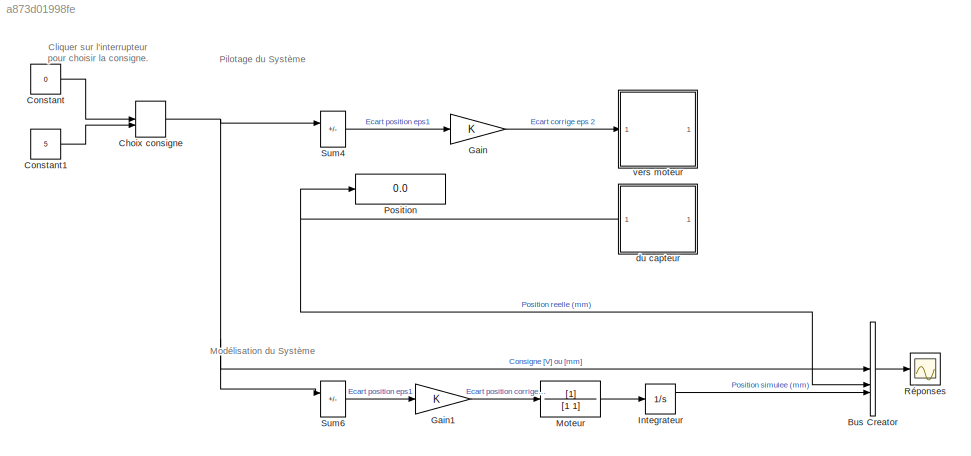
MODEL slx_a873d01998fe
KIND model
CONFIG AbsTol = auto
CONFIG EnableMultiTasking = on
CONFIG FixedStep = dt
CONFIG MaxStep = auto
CONFIG MinStep = auto
CONFIG RelTol = 1e-3
CONFIG SampleTimeConstraint = Unconstrained
CONFIG SolverName = ode5
CONFIG StartTime = 0.0
CONFIG StopTime = inf
BLOCK [BusCreator] Bus Creator
  DisplayOption = bar
  InheritFromInputs = on
  Inputs = 3
BLOCK [ManualSwitch] Choix consigne
BLOCK [Constant] Constant
  Value = 0
BLOCK [Constant] Constant1
  Value = 5
BLOCK [Gain] Gain
BLOCK [Gain] Gain1
BLOCK [Integrator] Integrateur
BLOCK [TransferFcn] Moteur
  Denominator = [1 1]
BLOCK [Display] Position
  Decimation = 1
BLOCK [Scope] Réponses
  Floating = off
  NumInputPorts = 1
  ScopeSpecificationString = Simulink.scopes.TimeScopeBlockCfg('CurrentConfiguration', extmgr.ConfigurationSet(extmgr.Configuration('Core','General UI',true,'FigureColor',[1 1 1]),extmgr.Configuration('Core','Source UI',true),extmgr.Configuration('Sources','WiredSimulink',true,'DataLoggingVariableName','y2','DataLoggingMaxPoints','10001','DataLoggingSaveFormat','Array','DataLoggingDecimation','1','DataLoggingDecimateData',tru...<+2788ch>
BLOCK [Sum] Sum4
  IconShape = rectangular
  Inputs = +-
BLOCK [Sum] Sum6
  IconShape = rectangular
  Inputs = +-
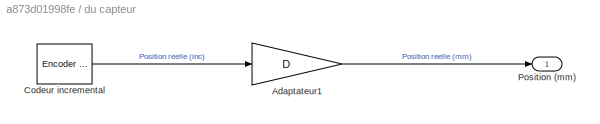
BLOCK [SubSystem] du capteur
BLOCK [Gain] du capteur/Adaptateur1
  Gain = D
BLOCK [Reference] du capteur/Codeur incremental  REF=sldrtlib/Encoder Input
  AttributesFormatString = National Instruments\nPCIe-6321 [auto]
  SourceBlock = sldrtlib/Encoder Input
  SourceType = Simulink Desktop Real-Time Encoder Input
BLOCK [Outport] du capteur/Position (mm)
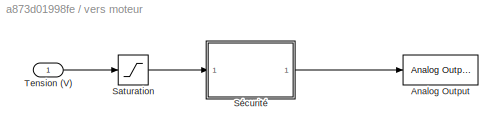
BLOCK [SubSystem] vers moteur
BLOCK [Reference] vers moteur/Analog Output  REF=sldrtlib/Analog Output
  AttributesFormatString = National Instruments\nPCIe-6321 [auto]
  SourceBlock = sldrtlib/Analog Output
  SourceType = Simulink Desktop Real-Time Analog Output
BLOCK [Saturate] vers moteur/Saturation
  LowerLimit = -10
  UpperLimit = 10
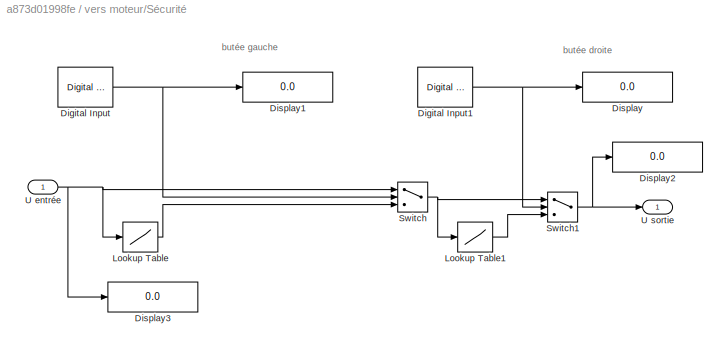
BLOCK [SubSystem] vers moteur/Sécurité
BLOCK [Reference] vers moteur/Sécurité/Digital Input  REF=sldrtlib/Digital Input
  AttributesFormatString = National Instruments\nPCIe-6321 [auto]
  SourceBlock = sldrtlib/Digital Input
  SourceType = Simulink Desktop Real-Time Digital Input
BLOCK [Reference] vers moteur/Sécurité/Digital Input1  REF=sldrtlib/Digital Input
  AttributesFormatString = National Instruments\nPCIe-6321 [auto]
  SourceBlock = sldrtlib/Digital Input
  SourceType = Simulink Desktop Real-Time Digital Input
BLOCK [Display] vers moteur/Sécurité/Display
  Decimation = 3
BLOCK [Display] vers moteur/Sécurité/Display1
  Decimation = 1
BLOCK [Display] vers moteur/Sécurité/Display2
  Decimation = 3
BLOCK [Display] vers moteur/Sécurité/Display3
  Decimation = 3
BLOCK [Lookup] vers moteur/Sécurité/Lookup Table
  InputValues = [-Vsat 0 Vsat]
  SaturateOnIntegerOverflow = off
  Table = [0 0 Vsat]
BLOCK [Lookup] vers moteur/Sécurité/Lookup Table1
  InputValues = [-Vsat 0 Vsat]
  SaturateOnIntegerOverflow = off
  Table = [-Vsat 0 0]
BLOCK [Switch] vers moteur/Sécurité/Switch
  Criteria = u2 ~= 0
  InputSameDT = off
  SaturateOnIntegerOverflow = off
BLOCK [Switch] vers moteur/Sécurité/Switch1
  Criteria = u2 ~= 0
  InputSameDT = off
  SaturateOnIntegerOverflow = off
BLOCK [Inport] vers moteur/Sécurité/U entrée
BLOCK [Outport] vers moteur/Sécurité/U sortie
BLOCK [Inport] vers moteur/Tension (V)
ANNOTATION (root): Cliquer sur l'interrupteur pour choisir la consigne.
ANNOTATION (root): Modélisation du Système
ANNOTATION (root): Pilotage du Système
ANNOTATION vers moteur/Sécurité: butée droite
ANNOTATION vers moteur/Sécurité: butée gauche
LINE Bus Creator:1 -> Réponses:1
NET Choix consigne:1 -> Bus Creator:1, Sum4:1, Sum6:1
LINE Constant1:1 -> Choix consigne:2
LINE Constant:1 -> Choix consigne:1
LINE Gain1:1 -> Moteur:1
LINE Gain:1 -> vers moteur:1
LINE Integrateur:1 -> Bus Creator:3
LINE Moteur:1 -> Integrateur:1
LINE Sum4:1 -> Gain:1
LINE Sum6:1 -> Gain1:1
LINE du capteur/Adaptateur1:1 -> du capteur/Position (mm):1
LINE du capteur/Codeur incremental:1 -> du capteur/Adaptateur1:1
NET du capteur:1 -> Bus Creator:2, Position:1
LINE vers moteur/Saturation:1 -> vers moteur/Sécurité:1
NET vers moteur/Sécurité/Digital Input1:1 -> vers moteur/Sécurité/Display:1, vers moteur/Sécurité/Switch1:2
NET vers moteur/Sécurité/Digital Input:1 -> vers moteur/Sécurité/Display1:1, vers moteur/Sécurité/Switch:2
LINE vers moteur/Sécurité/Lookup Table1:1 -> vers moteur/Sécurité/Switch1:3
LINE vers moteur/Sécurité/Lookup Table:1 -> vers moteur/Sécurité/Switch:3
NET vers moteur/Sécurité/Switch1:1 -> vers moteur/Sécurité/Display2:1, vers moteur/Sécurité/U sortie:1
NET vers moteur/Sécurité/Switch:1 -> vers moteur/Sécurité/Lookup Table1:1, vers moteur/Sécurité/Switch1:1
NET vers moteur/Sécurité/U entrée:1 -> vers moteur/Sécurité/Display3:1, vers moteur/Sécurité/Lookup Table:1, vers moteur/Sécurité/Switch:1
LINE vers moteur/Sécurité:1 -> vers moteur/Analog Output:1
LINE vers moteur/Tension (V):1 -> vers moteur/Saturation:1
note: NET lines group one-source signal fan-out (src -> all destinations, sorted); 1:1 wires keep LINE
